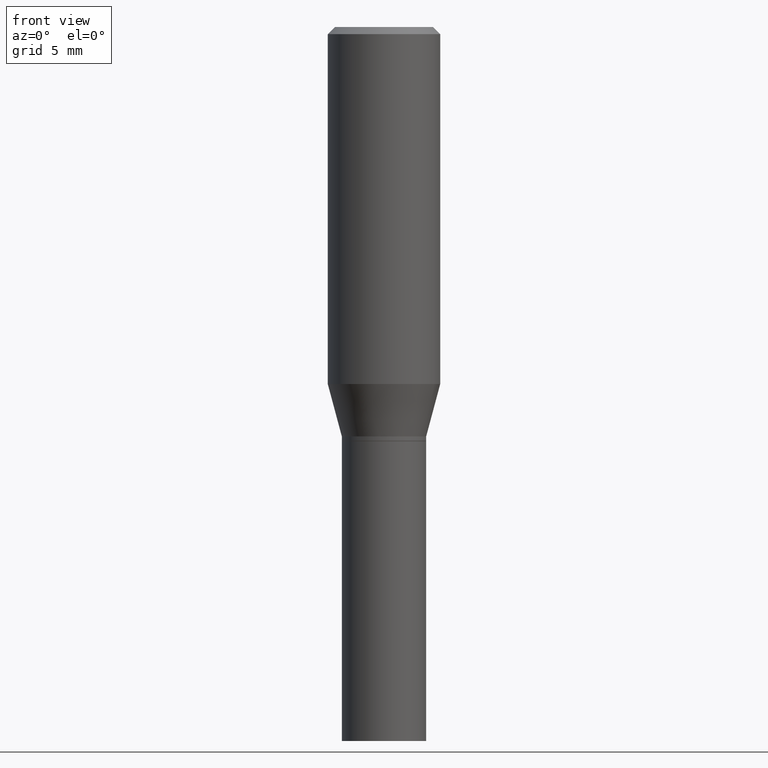
[diagram: clean part render]
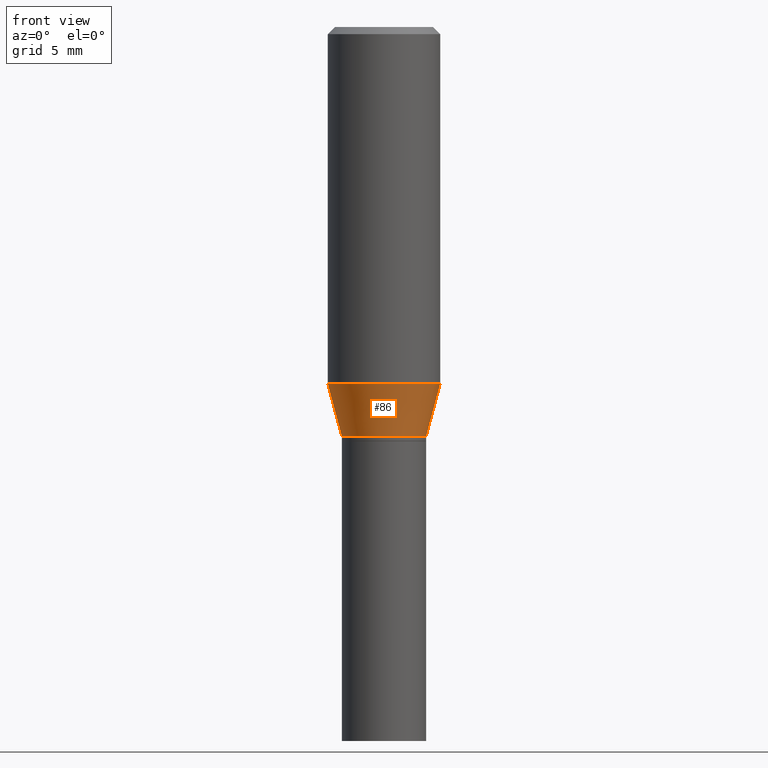
[diagram: same view with one face highlighted and labeled with its STEP entity id]
A machine part, front view. The second image highlights one B-rep face of the part: STEP entity #86.
In plain terms, the highlighted conical surface has half-angle 15 deg.
Its self-contained STEP definition (entity closure, byte-faithful):
#1 = CIRCLE ( 'NONE', #333, 0.08859999999999995657 ) ;
#4 = VERTEX_POINT ( 'NONE', #367 ) ;
#6 = ORIENTED_EDGE ( 'NONE', *, *, #178, .T. ) ;
#18 = CARTESIAN_POINT ( 'NONE',  ( 2.103347720199836549E-29, -3.003023099538990346E-15, -0.8601000000000001977 ) ) ;
#21 = DIRECTION ( 'NONE',  ( 1.000000000000000000, -6.982962677686266711E-15, 0.000000000000000000 ) ) ;
#58 = EDGE_CURVE ( 'NONE', #4, #74, #305, .T. ) ;
#59 = CARTESIAN_POINT ( 'NONE',  ( 2.103347720199836549E-29, -3.003023099538990346E-15, -0.8601000000000001977 ) ) ;
#74 = VERTEX_POINT ( 'NONE', #80 ) ;
#80 = CARTESIAN_POINT ( 'NONE',  ( 0.1180999999999999966, -3.443314612141622358E-15, -0.7500045011767182412 ) ) ;
#86 = ADVANCED_FACE ( 'NONE', ( #266 ), #284, .T. ) ;
#119 = DIRECTION ( 'NONE',  ( -2.445468806185136597E-29, 3.491481338843145583E-15, 1.000000000000000000 ) ) ;
#128 = DIRECTION ( 'NONE',  ( 1.000000000000000000, -6.982962677686265133E-15, 0.000000000000000000 ) ) ;
#136 = LINE ( 'NONE', #346, #317 ) ;
#138 = EDGE_CURVE ( 'NONE', #274, #74, #136, .T. ) ;
#148 = LINE ( 'NONE', #460, #190 ) ;
#161 = DIRECTION ( 'NONE',  ( -2.445468806185136597E-29, 3.491481338843145583E-15, 1.000000000000000000 ) ) ;
#178 = EDGE_CURVE ( 'NONE', #268, #274, #1, .T. ) ;
#190 = VECTOR ( 'NONE', #294, 39.37007874015748143 ) ;
#201 = CARTESIAN_POINT ( 'NONE',  ( 1.834112612126108016E-29, -2.618626719906874095E-15, -0.7500045011767182412 ) ) ;
#208 = DIRECTION ( 'NONE',  ( -2.445468806185136597E-29, 3.491481338843145583E-15, 1.000000000000000000 ) ) ;
#212 = CARTESIAN_POINT ( 'NONE',  ( -0.08859999999999995657, -2.076478992314868500E-15, -0.8601000000000001977 ) ) ;
#240 = AXIS2_PLACEMENT_3D ( 'NONE', #201, #161, #128 ) ;
#242 = DIRECTION ( 'NONE',  ( 1.000000000000000000, -6.982962677686266711E-15, 0.000000000000000000 ) ) ;
#246 = DIRECTION ( 'NONE',  ( 0.2588190451025210170, 1.565188264969624531E-15, 0.9659258262890682012 ) ) ;
#248 = AXIS2_PLACEMENT_3D ( 'NONE', #18, #119, #21 ) ;
#266 = FACE_OUTER_BOUND ( 'NONE', #437, .T. ) ;
#268 = VERTEX_POINT ( 'NONE', #212 ) ;
#274 = VERTEX_POINT ( 'NONE', #363 ) ;
#284 = CONICAL_SURFACE ( 'NONE', #248, 0.08859999999999995657, 0.2617993877991496854 ) ;
#287 = ORIENTED_EDGE ( 'NONE', *, *, #372, .F. ) ;
#294 = DIRECTION ( 'NONE',  ( -0.2588190451025210170, 5.211531920934547886E-15, 0.9659258262890682012 ) ) ;
#295 = ORIENTED_EDGE ( 'NONE', *, *, #58, .F. ) ;
#305 = CIRCLE ( 'NONE', #240, 0.1180999999999999966 ) ;
#317 = VECTOR ( 'NONE', #246, 39.37007874015748143 ) ;
#333 = AXIS2_PLACEMENT_3D ( 'NONE', #59, #208, #242 ) ;
#346 = CARTESIAN_POINT ( 'NONE',  ( 0.08859999999999995657, -3.621713592781993299E-15, -0.8601000000000001977 ) ) ;
#363 = CARTESIAN_POINT ( 'NONE',  ( 0.08859999999999995657, -3.621713592781993299E-15, -0.8601000000000001977 ) ) ;
#367 = CARTESIAN_POINT ( 'NONE',  ( -0.1180999999999999966, -1.779475748974195504E-15, -0.7500045011767182412 ) ) ;
#372 = EDGE_CURVE ( 'NONE', #268, #4, #148, .T. ) ;
#437 = EDGE_LOOP ( 'NONE', ( #287, #6, #463, #295 ) ) ;
#460 = CARTESIAN_POINT ( 'NONE',  ( -0.08859999999999995657, -2.373482235655541495E-15, -0.8601000000000001977 ) ) ;
#463 = ORIENTED_EDGE ( 'NONE', *, *, #138, .T. ) ;